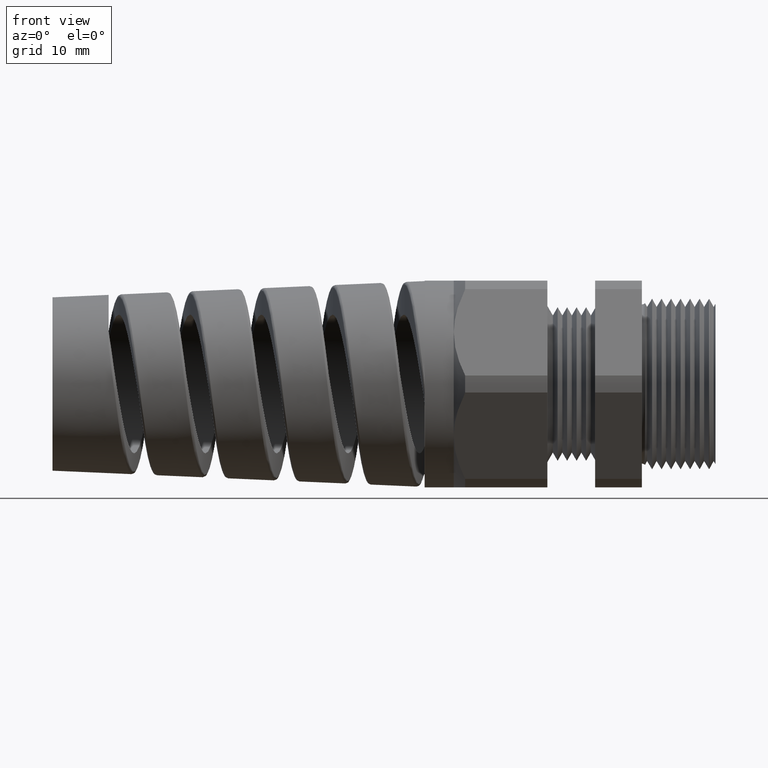
[diagram: clean part render]
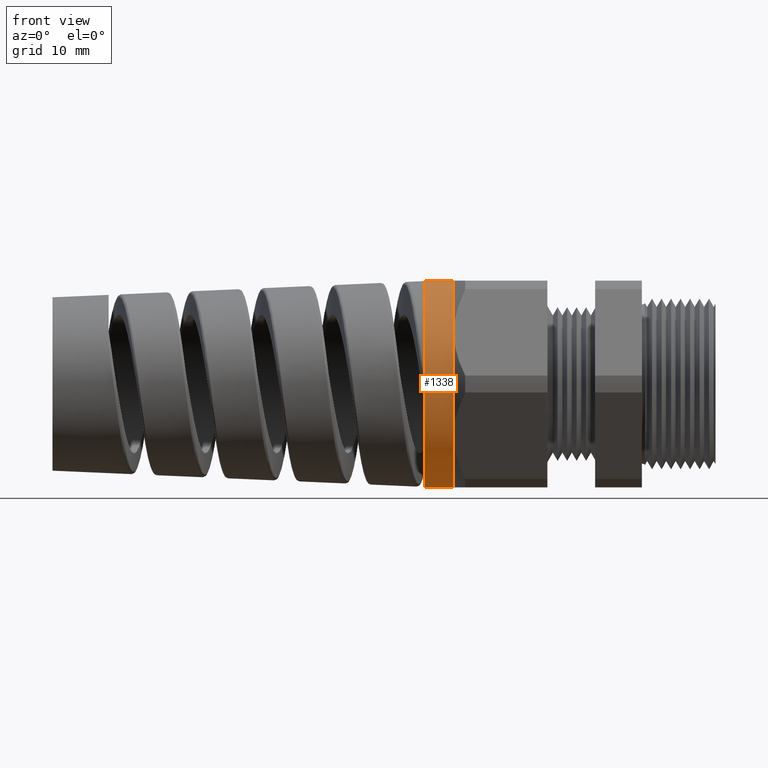
[diagram: same view with one face highlighted and labeled with its STEP entity id]
A machine part, front view. The second image highlights one B-rep face of the part: STEP entity #1338.
In plain terms, the highlighted cylindrical surface (partial cylindrical patch) has radius 11.049 mm, axis along (1, 0, 0).
Its self-contained STEP definition (entity closure, byte-faithful):
#1324 = VERTEX_POINT ( 'NONE', #5407 ) ;
#1327 = VERTEX_POINT ( 'NONE', #5455 ) ;
#1338 = ADVANCED_FACE ( 'NONE', ( #5499 ), #5501, .T. ) ;
#1339 = EDGE_LOOP ( 'NONE', ( #1391, #1392, #1394, #1395, #1397, #1399 ) ) ;
#1391 = ORIENTED_EDGE ( 'NONE', *, *, #9437, .F. ) ;
#1392 = ORIENTED_EDGE ( 'NONE', *, *, #1393, .F. ) ;
#1393 = EDGE_CURVE ( 'NONE', #9318, #9317, #5355, .T. ) ;
#1394 = ORIENTED_EDGE ( 'NONE', *, *, #9126, .T. ) ;
#1395 = ORIENTED_EDGE ( 'NONE', *, *, #1396, .F. ) ;
#1396 = EDGE_CURVE ( 'NONE', #1324, #9130, #5662, .T. ) ;
#1397 = ORIENTED_EDGE ( 'NONE', *, *, #1398, .F. ) ;
#1398 = EDGE_CURVE ( 'NONE', #1327, #1324, #5657, .T. ) ;
#1399 = ORIENTED_EDGE ( 'NONE', *, *, #1400, .F. ) ;
#1400 = EDGE_CURVE ( 'NONE', #9434, #1327, #5652, .T. ) ;
#5354 = AXIS2_PLACEMENT_3D ( 'NONE', #5356, #5600, #5595 ) ;
#5355 = CIRCLE ( 'NONE', #5354, 0.4349999999999999400 ) ;
#5356 = CARTESIAN_POINT ( 'NONE',  ( -1.224159135319805800, 0.0000000000000000000, 0.0000000000000000000 ) ) ;
#5407 = CARTESIAN_POINT ( 'NONE',  ( -1.101259842519684900, -0.3767210506462308500, -0.2175000000000001700 ) ) ;
#5455 = CARTESIAN_POINT ( 'NONE',  ( -1.101259842519684900, -0.3767210506462309000, 0.2174999999999998900 ) ) ;
#5488 = DIRECTION ( 'NONE',  ( 0.0000000000000000000, 0.0000000000000000000, -1.000000000000000000 ) ) ;
#5489 = DIRECTION ( 'NONE',  ( 1.000000000000000000, 0.0000000000000000000, 0.0000000000000000000 ) ) ;
#5490 = CARTESIAN_POINT ( 'NONE',  ( 0.09602717987635048200, 0.0000000000000000000, 0.0000000000000000000 ) ) ;
#5491 = AXIS2_PLACEMENT_3D ( 'NONE', #5490, #5489, #5488 ) ;
#5499 = FACE_OUTER_BOUND ( 'NONE', #1339, .T. ) ;
#5501 = CYLINDRICAL_SURFACE ( 'NONE', #5491, 0.4350000000000000000 ) ;
#5595 = DIRECTION ( 'NONE',  ( 0.0000000000000000000, 0.0000000000000000000, 1.000000000000000000 ) ) ;
#5600 = DIRECTION ( 'NONE',  ( -1.000000000000000000, 0.0000000000000000000, 0.0000000000000000000 ) ) ;
#5648 = DIRECTION ( 'NONE',  ( 0.0000000000000000000, 0.0000000000000000000, -1.000000000000000000 ) ) ;
#5649 = DIRECTION ( 'NONE',  ( 1.000000000000000000, 0.0000000000000000000, 0.0000000000000000000 ) ) ;
#5650 = CARTESIAN_POINT ( 'NONE',  ( -1.101259842519684900, 0.0000000000000000000, 0.0000000000000000000 ) ) ;
#5651 = AXIS2_PLACEMENT_3D ( 'NONE', #5650, #5649, #5648 ) ;
#5652 = CIRCLE ( 'NONE', #5651, 0.4350000000000000000 ) ;
#5653 = DIRECTION ( 'NONE',  ( 0.0000000000000000000, 0.0000000000000000000, -1.000000000000000000 ) ) ;
#5654 = DIRECTION ( 'NONE',  ( 1.000000000000000000, 0.0000000000000000000, 0.0000000000000000000 ) ) ;
#5655 = CARTESIAN_POINT ( 'NONE',  ( -1.101259842519684900, 0.0000000000000000000, 0.0000000000000000000 ) ) ;
#5656 = AXIS2_PLACEMENT_3D ( 'NONE', #5655, #5654, #5653 ) ;
#5657 = CIRCLE ( 'NONE', #5656, 0.4350000000000000000 ) ;
#5658 = DIRECTION ( 'NONE',  ( 0.0000000000000000000, 0.0000000000000000000, -1.000000000000000000 ) ) ;
#5659 = DIRECTION ( 'NONE',  ( 1.000000000000000000, 0.0000000000000000000, 0.0000000000000000000 ) ) ;
#5660 = CARTESIAN_POINT ( 'NONE',  ( -1.101259842519684900, 0.0000000000000000000, 0.0000000000000000000 ) ) ;
#5661 = AXIS2_PLACEMENT_3D ( 'NONE', #5660, #5659, #5658 ) ;
#5662 = CIRCLE ( 'NONE', #5661, 0.4350000000000000000 ) ;
#6537 = CARTESIAN_POINT ( 'NONE',  ( -1.101259842519684900, 0.0000000000000000000, -0.4350000000000000500 ) ) ;
#6543 = DIRECTION ( 'NONE',  ( 1.000000000000000000, 0.0000000000000000000, 0.0000000000000000000 ) ) ;
#6544 = VECTOR ( 'NONE', #6543, 39.37007874015748100 ) ;
#6545 = CARTESIAN_POINT ( 'NONE',  ( 0.09602717987635048200, 0.0000000000000000000, -0.4350000000000000000 ) ) ;
#6546 = LINE ( 'NONE', #6545, #6544 ) ;
#6692 = LINE ( 'NONE', #8215, #8273 ) ;
#6702 = CARTESIAN_POINT ( 'NONE',  ( -1.224159135319805800, 0.0000000000000000000, -0.4349999999999999400 ) ) ;
#6703 = CARTESIAN_POINT ( 'NONE',  ( -1.224159135319805800, 5.327213576290985700E-017, 0.4349999999999999400 ) ) ;
#6792 = CARTESIAN_POINT ( 'NONE',  ( -1.101259842519684900, 0.0000000000000000000, 0.4349999999999998900 ) ) ;
#8215 = CARTESIAN_POINT ( 'NONE',  ( 0.09602717987635048200, 5.327213576290986400E-017, 0.4350000000000000000 ) ) ;
#8272 = DIRECTION ( 'NONE',  ( 1.000000000000000000, 0.0000000000000000000, 0.0000000000000000000 ) ) ;
#8273 = VECTOR ( 'NONE', #8272, 39.37007874015748100 ) ;
#9126 = EDGE_CURVE ( 'NONE', #9318, #9130, #6546, .T. ) ;
#9130 = VERTEX_POINT ( 'NONE', #6537 ) ;
#9317 = VERTEX_POINT ( 'NONE', #6703 ) ;
#9318 = VERTEX_POINT ( 'NONE', #6702 ) ;
#9434 = VERTEX_POINT ( 'NONE', #6792 ) ;
#9437 = EDGE_CURVE ( 'NONE', #9317, #9434, #6692, .T. ) ;